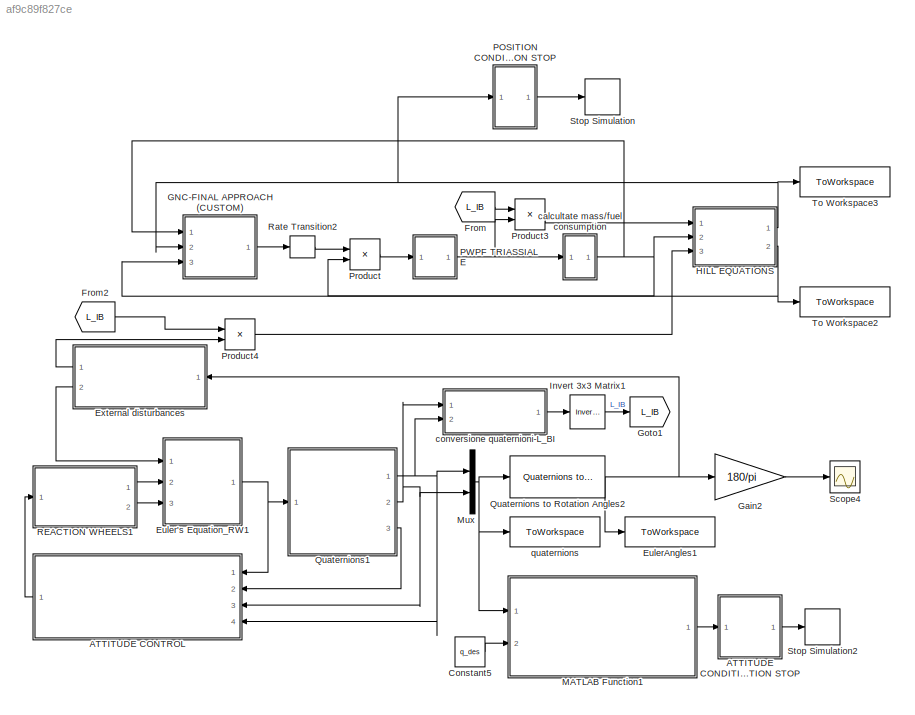
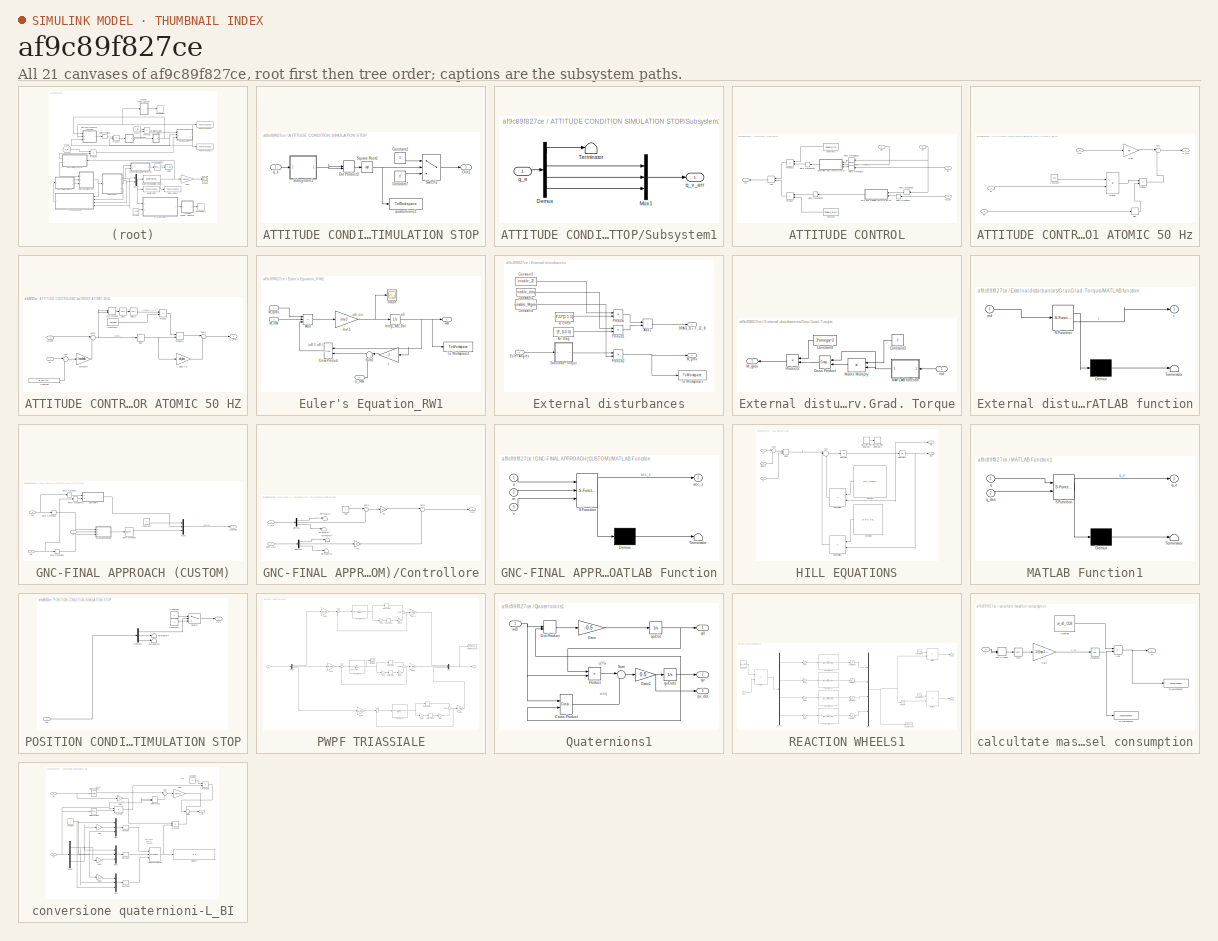
[diagram: thumbnail index - all 21 canvases of the model, root first then tree order]
MODEL slx_af9c89f827ce
KIND model
CONFIG AbsTol = auto
CONFIG EnableMultiTasking = off
CONFIG FixedStep = 0.01
CONFIG MaxStep = auto
CONFIG MinStep = auto
CONFIG RelTol = 1e-3
CONFIG SampleTimeConstraint = Unconstrained
CONFIG SolverName = ode5
CONFIG StartTime = 0.0
CONFIG StopTime = 10
BLOCK [SubSystem] ATTITUDE CONDITION SIMULATION STOP
  Ports = [1, 1]
  RequestExecContextInheritance = off
BLOCK [Constant] ATTITUDE CONDITION SIMULATION STOP/Constant2
BLOCK [Constant] ATTITUDE CONDITION SIMULATION STOP/Constant7
  Value = 0
BLOCK [DotProduct] ATTITUDE CONDITION SIMULATION STOP/Dot Product2
  OutDataTypeStr = Inherit: Inherit via internal rule
BLOCK [Outport] ATTITUDE CONDITION SIMULATION STOP/Out1
BLOCK [Sqrt] ATTITUDE CONDITION SIMULATION STOP/Square Root2
BLOCK [SubSystem] ATTITUDE CONDITION SIMULATION STOP/Subsystem1
  Ports = [1, 1]
  RequestExecContextInheritance = off
BLOCK [Demux] ATTITUDE CONDITION SIMULATION STOP/Subsystem1/Demux
  Ports = [1, 4]
BLOCK [Mux] ATTITUDE CONDITION SIMULATION STOP/Subsystem1/Mux1
  DisplayOption = bar
  Inputs = 3
  Ports = [3, 1]
BLOCK [Terminator] ATTITUDE CONDITION SIMULATION STOP/Subsystem1/Terminator
BLOCK [Inport] ATTITUDE CONDITION SIMULATION STOP/Subsystem1/q_e
BLOCK [Outport] ATTITUDE CONDITION SIMULATION STOP/Subsystem1/q_v_err
  VectorParamsAs1DForOutWhenUnconnected = off
BLOCK [Switch] ATTITUDE CONDITION SIMULATION STOP/Switch2
  Criteria = u2 > Threshold
  InputSameDT = off
  SaturateOnIntegerOverflow = off
  Threshold = e_ss
BLOCK [Inport] ATTITUDE CONDITION SIMULATION STOP/q_e
BLOCK [ToWorkspace] ATTITUDE CONDITION SIMULATION STOP/quaternions2
  FixptAsFi = on
  MaxDataPoints = inf
  Ports = [1]
  SampleTime = -1
  VariableName = normqerr
BLOCK [SubSystem] ATTITUDE CONTROL
  Ports = [4, 1]
  RequestExecContextInheritance = off
BLOCK [Sum] ATTITUDE CONTROL/Add
  IconShape = rectangular
  Ports = [2, 1]
BLOCK [Constant] ATTITUDE CONTROL/Constant
  Value = enable_SMC
BLOCK [Constant] ATTITUDE CONTROL/Constant1
  Value = enable_PD
BLOCK [SubSystem] ATTITUDE CONTROL/Controller PD1 ATOMIC 50 Hz
  Ports = [3, 1]
  RequestExecContextInheritance = off
  SystemSampleTime = 0.02
  TreatAsAtomicUnit = on
BLOCK [Constant] ATTITUDE CONTROL/Controller PD1 ATOMIC 50 Hz/Constant
  Value = kp1
BLOCK [Gain] ATTITUDE CONTROL/Controller PD1 ATOMIC 50 Hz/Gain
  Gain = kd
  Multiplication = Matrix(K*u) (u vector)
BLOCK [Product] ATTITUDE CONTROL/Controller PD1 ATOMIC 50 Hz/Multiply
  Multiplication = Matrix(*)
  Ports = [2, 1]
BLOCK [Product] ATTITUDE CONTROL/Controller PD1 ATOMIC 50 Hz/Multiply1
  Ports = [2, 1]
BLOCK [Signum] ATTITUDE CONTROL/Controller PD1 ATOMIC 50 Hz/Sign
BLOCK [Sum] ATTITUDE CONTROL/Controller PD1 ATOMIC 50 Hz/Sum
  Inputs = |--
  Ports = [2, 1]
BLOCK [Outport] ATTITUDE CONTROL/Controller PD1 ATOMIC 50 Hz/U_RW
  VectorParamsAs1DForOutWhenUnconnected = off
BLOCK [Inport] ATTITUDE CONTROL/Controller PD1 ATOMIC 50 Hz/q0
  Port = 3
BLOCK [Inport] ATTITUDE CONTROL/Controller PD1 ATOMIC 50 Hz/qv
BLOCK [Inport] ATTITUDE CONTROL/Controller PD1 ATOMIC 50 Hz/wb
  Port = 2
BLOCK [Outport] ATTITUDE CONTROL/Mc
BLOCK [Product] ATTITUDE CONTROL/Product
  Ports = [2, 1]
BLOCK [Product] ATTITUDE CONTROL/Product1
  Ports = [2, 1]
BLOCK [RateTransition] ATTITUDE CONTROL/Rate Transition10
  InitialCondition = wb_0
  OutPortSampleTime = Dt_con
BLOCK [RateTransition] ATTITUDE CONTROL/Rate Transition11
  InitialCondition = qv_0
  OutPortSampleTime = Dt_con
BLOCK [RateTransition] ATTITUDE CONTROL/Rate Transition12
  OutPortSampleTime = Dt
BLOCK [RateTransition] ATTITUDE CONTROL/Rate Transition13
  OutPortSampleTime = Dt
BLOCK [RateTransition] ATTITUDE CONTROL/Rate Transition7
  InitialCondition = qv_0
  OutPortSampleTime = Dt_con
BLOCK [RateTransition] ATTITUDE CONTROL/Rate Transition8
  InitialCondition = q0_0
  OutPortSampleTime = Dt_con
BLOCK [RateTransition] ATTITUDE CONTROL/Rate Transition9
  InitialCondition = q0_0
  OutPortSampleTime = Dt_con
BLOCK [SubSystem] ATTITUDE CONTROL/SMC 2nd ORDER ATOMIC 50 HZ
  Ports = [2, 1]
  RequestExecContextInheritance = off
  SystemSampleTime = 0.02
  TreatAsAtomicUnit = on
BLOCK [Constant] ATTITUDE CONTROL/SMC 2nd ORDER ATOMIC 50 HZ/Constant
  Value = [q_des(2);q_des(3);q_des(4)]
BLOCK [Constant] ATTITUDE CONTROL/SMC 2nd ORDER ATOMIC 50 HZ/Constant1
  Value = -lambda
BLOCK [DotProduct] ATTITUDE CONTROL/SMC 2nd ORDER ATOMIC 50 HZ/Dot Product
  OutDataTypeStr = Inherit: Inherit via internal rule
BLOCK [Product] ATTITUDE CONTROL/SMC 2nd ORDER ATOMIC 50 HZ/Product
  Ports = [2, 1]
BLOCK [Product] ATTITUDE CONTROL/SMC 2nd ORDER ATOMIC 50 HZ/Product1
  Ports = [2, 1]
BLOCK [Signum] ATTITUDE CONTROL/SMC 2nd ORDER ATOMIC 50 HZ/Sign
BLOCK [Sqrt] ATTITUDE CONTROL/SMC 2nd ORDER ATOMIC 50 HZ/Sqrt
BLOCK [Sqrt] ATTITUDE CONTROL/SMC 2nd ORDER ATOMIC 50 HZ/Sqrt1
BLOCK [Sum] ATTITUDE CONTROL/SMC 2nd ORDER ATOMIC 50 HZ/Sum
  Inputs = |+-
  Ports = [2, 1]
BLOCK [Sum] ATTITUDE CONTROL/SMC 2nd ORDER ATOMIC 50 HZ/Sum1
  Inputs = |++
  Ports = [2, 1]
BLOCK [Sum] ATTITUDE CONTROL/SMC 2nd ORDER ATOMIC 50 HZ/Sum2
  Inputs = |++
  Ports = [2, 1]
BLOCK [Outport] ATTITUDE CONTROL/SMC 2nd ORDER ATOMIC 50 HZ/U_RW
BLOCK [Gain] ATTITUDE CONTROL/SMC 2nd ORDER ATOMIC 50 HZ/alpha > 0
  Gain = -alpha
BLOCK [Gain] ATTITUDE CONTROL/SMC 2nd ORDER ATOMIC 50 HZ/lambda>0
  Gain = lambda
BLOCK [Inport] ATTITUDE CONTROL/SMC 2nd ORDER ATOMIC 50 HZ/qv
BLOCK [Inport] ATTITUDE CONTROL/SMC 2nd ORDER ATOMIC 50 HZ/qv_dot
  Port = 2
BLOCK [Inport] ATTITUDE CONTROL/q0
  Port = 4
BLOCK [Inport] ATTITUDE CONTROL/qv
  Port = 3
BLOCK [Inport] ATTITUDE CONTROL/qv_dot
  Port = 2
BLOCK [Inport] ATTITUDE CONTROL/wb
BLOCK [Constant] Constant5
  Value = q_des
BLOCK [SubSystem] Euler's Equation_RW1
  Ports = [3, 1]
  RequestExecContextInheritance = off
BLOCK [Sum] Euler's Equation_RW1/Add
  IconShape = rectangular
  Inputs = +--
  Ports = [3, 1]
BLOCK [Reference] Euler's Equation_RW1/Cross Product  REF=vrlib/Utilities/Cross Product
  Ports = [2, 1]
  SourceBlock = vrlib/Utilities/Cross Product
  SourceProductBaseCode = SL
  SourceType = Cross Product
BLOCK [Gain] Euler's Equation_RW1/I
  Gain = J
  Multiplication = Matrix(K*u)
BLOCK [Integrator] Euler's Equation_RW1/Integ_wB_Dot
  InitialCondition = wb_0
  Ports = [1, 1]
BLOCK [Gain] Euler's Equation_RW1/Inv^-1
  Gain = invJ
  Multiplication = Matrix(K*u)
BLOCK [Inport] Euler's Equation_RW1/M_RW
  Port = 2
BLOCK [Inport] Euler's Equation_RW1/M_grav
BLOCK [Scope] Euler's Equation_RW1/Scope
  Floating = off
  NumInputPorts = 1
  Ports = [1]
  ScopeSpecificationString = Simulink.scopes.TimeScopeBlockCfg('CurrentConfiguration', extmgr.ConfigurationSet(extmgr.Configuration('Core','General UI',true),extmgr.Configuration('Core','Source UI',true),extmgr.Configuration('Sources','WiredSimulink',true,'DataLoggingVariableName','ScopeData1'),extmgr.Configuration('Visuals','Time Domain',true,'SerializedDisplays',{struct('MinYLimReal','-0.0875','MaxYLimReal','0.0838','YLabel...<+1412ch>
BLOCK [Sum] Euler's Equation_RW1/Sum1
  Inputs = |++
  NameLocation = top
  Ports = [2, 1]
BLOCK [ToWorkspace] Euler's Equation_RW1/To Workspace3
  FixptAsFi = on
  MaxDataPoints = inf
  Ports = [1]
  SampleTime = -1
  VariableName = wb
BLOCK [Inport] Euler's Equation_RW1/h_RW
  Port = 3
BLOCK [Outport] Euler's Equation_RW1/wB
  VectorParamsAs1DForOutWhenUnconnected = off
BLOCK [ToWorkspace] EulerAngles1
  FixptAsFi = on
  MaxDataPoints = inf
  Ports = [1]
  SampleTime = -1
  VariableName = EulerAngles
BLOCK [SubSystem] External disturbances
  Ports = [1, 2]
  RequestExecContextInheritance = off
BLOCK [Sum] External disturbances/Add1
  IconShape = rectangular
  Ports = [2, 1]
BLOCK [Constant] External disturbances/Air Drag
  Value = [F_D 0 0]
BLOCK [Constant] External disturbances/Constant1
  Value = enable_drag
BLOCK [Constant] External disturbances/Constant3
  Value = enable_J2
BLOCK [Constant] External disturbances/Constant4
  Value = enable_Mgrav
BLOCK [Outport] External disturbances/DRAG_B + F_J2_B
BLOCK [Inport] External disturbances/Euler Angles
BLOCK [SubSystem] External disturbances/Grav.Grad. Torque
  Ports = [1, 1]
  RequestExecContextInheritance = off
BLOCK [Constant] External disturbances/Grav.Grad. Torque/Constant3
  Value = J
BLOCK [Constant] External disturbances/Grav.Grad. Torque/Constant4
  Value = 3*omega^2
BLOCK [Reference] External disturbances/Grav.Grad. Torque/Cross Product  REF=vrlib/Utilities/Cross Product
  Ports = [2, 1]
  SourceBlock = vrlib/Utilities/Cross Product
  SourceProductBaseCode = SL
  SourceType = Cross Product
BLOCK [SubSystem] External disturbances/Grav.Grad. Torque/MATLAB function
  ErrorFcn = Stateflow.Translate.translate
  PermitHierarchicalResolution = ExplicitOnly
  Ports = [1, 1]
  RequestExecContextInheritance = off
  SFBlockType = MATLAB Function
  TreatAsAtomicUnit = on
BLOCK [Demux] External disturbances/Grav.Grad. Torque/MATLAB function/ Demux 
  Outputs = 1
  Ports = [1, 1]
BLOCK [S-Function] External disturbances/Grav.Grad. Torque/MATLAB function/ SFunction 
  EnableBusSupport = on
  FunctionName = sf_sfun
  PortCounts = [1 2]
  Ports = [1, 2]
  SFcnIsStateOwnerBlock = off
  SFunctionDeploymentMode = off
  Tag = Stateflow S-Function 4
BLOCK [Terminator] External disturbances/Grav.Grad. Torque/MATLAB function/ Terminator 
BLOCK [Inport] External disturbances/Grav.Grad. Torque/MATLAB function/eul
BLOCK [Outport] External disturbances/Grav.Grad. Torque/MATLAB function/r
BLOCK [Outport] External disturbances/Grav.Grad. Torque/M_grav
BLOCK [Product] External disturbances/Grav.Grad. Torque/Matrix Multiply
  Multiplication = Matrix(*)
  Ports = [2, 1]
BLOCK [Product] External disturbances/Grav.Grad. Torque/Product2
  Ports = [2, 1]
BLOCK [Inport] External disturbances/Grav.Grad. Torque/eul
BLOCK [Constant] External disturbances/J2 Effect
  Value = FJ2*[1 1 1]
BLOCK [Outport] External disturbances/M_grav
  Port = 2
BLOCK [Product] External disturbances/Product
  Ports = [2, 1]
BLOCK [Product] External disturbances/Product1
  Ports = [2, 1]
BLOCK [Product] External disturbances/Product2
  Ports = [2, 1]
BLOCK [ToWorkspace] External disturbances/To Workspace5
  FixptAsFi = on
  MaxDataPoints = inf
  Ports = [1]
  SampleTime = -1
  VariableName = M_grav
BLOCK [From] From
  GotoTag = L_IB
BLOCK [From] From2
  GotoTag = L_IB
BLOCK [SubSystem] GNC-FINAL APPROACH (CUSTOM)
  Ports = [3, 1]
  RequestExecContextInheritance = off
BLOCK [Constant] GNC-FINAL APPROACH (CUSTOM)/Constant
  Value = 0
BLOCK [SubSystem] GNC-FINAL APPROACH (CUSTOM)/Controllore
  Ports = [2, 1]
  RequestExecContextInheritance = off
BLOCK [Demux] GNC-FINAL APPROACH (CUSTOM)/Controllore/Demux1
  Outputs = 3
  Ports = [1, 3]
BLOCK [Demux] GNC-FINAL APPROACH (CUSTOM)/Controllore/Demux4
  Outputs = 3
  Ports = [1, 3]
BLOCK [Gain] GNC-FINAL APPROACH (CUSTOM)/Controllore/Kd
  Gain = Kd
BLOCK [Gain] GNC-FINAL APPROACH (CUSTOM)/Controllore/Kp
  Gain = Kp
BLOCK [Outport] GNC-FINAL APPROACH (CUSTOM)/Controllore/Out1
BLOCK [Sum] GNC-FINAL APPROACH (CUSTOM)/Controllore/Sum1
  Inputs = |+-
  Ports = [2, 1]
BLOCK [Sum] GNC-FINAL APPROACH (CUSTOM)/Controllore/Sum2
  Inputs = |+-
  Ports = [2, 1]
BLOCK [Terminator] GNC-FINAL APPROACH (CUSTOM)/Controllore/Terminator1
BLOCK [Terminator] GNC-FINAL APPROACH (CUSTOM)/Controllore/Terminator2
BLOCK [Terminator] GNC-FINAL APPROACH (CUSTOM)/Controllore/Terminator4
BLOCK [Terminator] GNC-FINAL APPROACH (CUSTOM)/Controllore/Terminator5
BLOCK [Inport] GNC-FINAL APPROACH (CUSTOM)/Controllore/x LVLH
BLOCK [Inport] GNC-FINAL APPROACH (CUSTOM)/Controllore/xdot LVLH
  Port = 2
BLOCK [Constant] GNC-FINAL APPROACH (CUSTOM)/Controllore/ydes
  Value = 0
BLOCK [SubSystem] GNC-FINAL APPROACH (CUSTOM)/MATLAB Function
  ErrorFcn = Stateflow.Translate.translate
  PermitHierarchicalResolution = ExplicitOnly
  Ports = [3, 1]
  RequestExecContextInheritance = off
  SFBlockType = MATLAB Function
  TreatAsAtomicUnit = on
BLOCK [Demux] GNC-FINAL APPROACH (CUSTOM)/MATLAB Function/ Demux 
  Outputs = 1
  Ports = [1, 1]
BLOCK [S-Function] GNC-FINAL APPROACH (CUSTOM)/MATLAB Function/ SFunction 
  EnableBusSupport = on
  FunctionName = sf_sfun
  PortCounts = [3 2]
  Ports = [3, 2]
  SFcnIsStateOwnerBlock = off
  SFunctionDeploymentMode = off
  Tag = Stateflow S-Function 1
BLOCK [Terminator] GNC-FINAL APPROACH (CUSTOM)/MATLAB Function/ Terminator 
BLOCK [Outport] GNC-FINAL APPROACH (CUSTOM)/MATLAB Function/acc_z
BLOCK [Inport] GNC-FINAL APPROACH (CUSTOM)/MATLAB Function/m
  Port = 2
BLOCK [Inport] GNC-FINAL APPROACH (CUSTOM)/MATLAB Function/u
BLOCK [Inport] GNC-FINAL APPROACH (CUSTOM)/MATLAB Function/v
  Port = 3
BLOCK [Mux] GNC-FINAL APPROACH (CUSTOM)/Mux3
  DisplayOption = bar
  Inputs = 3
  Ports = [3, 1]
BLOCK [Inport] GNC-FINAL APPROACH (CUSTOM)/Pos
  Port = 2
BLOCK [RateTransition] GNC-FINAL APPROACH (CUSTOM)/Rate Transition
  OutPortSampleTime = Dt_con
BLOCK [RateTransition] GNC-FINAL APPROACH (CUSTOM)/Rate Transition1
  InitialCondition = Pos0
  OutPortSampleTime = Dt_con
BLOCK [RateTransition] GNC-FINAL APPROACH (CUSTOM)/Rate Transition12
  InitialCondition = Vel0
  OutPortSampleTime = Dt_con
BLOCK [RateTransition] GNC-FINAL APPROACH (CUSTOM)/Rate Transition4
  InitialCondition = Vel0
  OutPortSampleTime = Dt_guid
BLOCK [RateTransition] GNC-FINAL APPROACH (CUSTOM)/Rate Transition5
  InitialCondition = Pos0
  OutPortSampleTime = Dt_guid
BLOCK [Inport] GNC-FINAL APPROACH (CUSTOM)/Vel
  Port = 3
BLOCK [Outport] GNC-FINAL APPROACH (CUSTOM)/aCUSTOM
BLOCK [Inport] GNC-FINAL APPROACH (CUSTOM)/m
BLOCK [Gain] Gain2
  Gain = 180/pi
BLOCK [Goto] Goto1
  GotoTag = L_IB
BLOCK [SubSystem] HILL EQUATIONS
  Ports = [3, 2]
  RequestExecContextInheritance = off
BLOCK [Constant] HILL EQUATIONS/Constant
  Value = [0 0 -2*omega; 0 0 0; 2*omega 0 0]
BLOCK [Constant] HILL EQUATIONS/Constant1
  Value = [0 0 0; 0 omega^2 0; 0 0 -3*omega^2]
BLOCK [DiscreteIntegrator] HILL EQUATIONS/Discrete-Time Integrator
  Commented = on
  ICPrevOutput = DiscIntNeverNeededParam
  ICPrevScaledInput = DiscIntNeverNeededParam
  InitialCondition = Vel0
  InitialConditionSetting = Auto
  Ports = [1, 1]
  SampleTime = -1
BLOCK [DiscreteIntegrator] HILL EQUATIONS/Discrete-Time Integrator1
  Commented = on
  ICPrevOutput = DiscIntNeverNeededParam
  ICPrevScaledInput = DiscIntNeverNeededParam
  InitialCondition = Pos0
  InitialConditionSetting = Auto
  Ports = [1, 1]
  SampleTime = -1
BLOCK [Inport] HILL EQUATIONS/Disturbi
  Port = 3
BLOCK [Product] HILL EQUATIONS/Divide
  Inputs = */
  Ports = [2, 1]
BLOCK [Inport] HILL EQUATIONS/Fc
BLOCK [Integrator] HILL EQUATIONS/Integrator
  InitialCondition = Vel0
  Ports = [1, 1]
BLOCK [Integrator] HILL EQUATIONS/Integrator1
  InitialCondition = Pos0
  Ports = [1, 1]
BLOCK [Product] HILL EQUATIONS/Matrix Multiply
  Multiplication = Matrix(*)
  Ports = [2, 1]
BLOCK [Product] HILL EQUATIONS/Matrix Multiply1
  Multiplication = Matrix(*)
  Ports = [2, 1]
BLOCK [Outport] HILL EQUATIONS/Pos
BLOCK [Sum] HILL EQUATIONS/Sum
  Inputs = |+--
  Ports = [3, 1]
BLOCK [Sum] HILL EQUATIONS/Sum1
  Inputs = |++
  Ports = [2, 1]
BLOCK [Outport] HILL EQUATIONS/Vel
  Port = 2
BLOCK [Inport] HILL EQUATIONS/m
  Port = 2
BLOCK [Reference] Invert 3x3 Matrix1  REF=aerolibutil/Invert 
3x3 Matrix
  Ports = [1, 1]
  SourceBlock = aerolibutil/Invert \n3x3 Matrix
  SourceProductBaseCode = AE
  SourceType = Invert 3x3 Matrix
BLOCK [SubSystem] MATLAB Function1
  ErrorFcn = Stateflow.Translate.translate
  PermitHierarchicalResolution = ExplicitOnly
  Ports = [2, 1]
  RequestExecContextInheritance = off
  SFBlockType = MATLAB Function
  TreatAsAtomicUnit = on
BLOCK [Demux] MATLAB Function1/ Demux 
  Outputs = 1
  Ports = [1, 1]
BLOCK [S-Function] MATLAB Function1/ SFunction 
  EnableBusSupport = on
  FunctionName = sf_sfun
  PortCounts = [2 2]
  Ports = [2, 2]
  SFcnIsStateOwnerBlock = off
  SFunctionDeploymentMode = off
  Tag = Stateflow S-Function 11
BLOCK [Terminator] MATLAB Function1/ Terminator 
BLOCK [Inport] MATLAB Function1/q
BLOCK [Inport] MATLAB Function1/q_des
  Port = 2
BLOCK [Outport] MATLAB Function1/q_e
  VectorParamsAs1DForOutWhenUnconnected = off
BLOCK [Mux] Mux
  DisplayOption = bar
  Inputs = 2
  Ports = [2, 1]
BLOCK [SubSystem] POSITION CONDITION SIMULATION STOP
  Ports = [1, 1]
  RequestExecContextInheritance = off
BLOCK [Constant] POSITION CONDITION SIMULATION STOP/Constant
BLOCK [Constant] POSITION CONDITION SIMULATION STOP/Constant1
  Value = 0
BLOCK [Demux] POSITION CONDITION SIMULATION STOP/Demux2
  Outputs = 3
  Ports = [1, 3]
BLOCK [Outport] POSITION CONDITION SIMULATION STOP/Out1
BLOCK [Inport] POSITION CONDITION SIMULATION STOP/Pos
BLOCK [Switch] POSITION CONDITION SIMULATION STOP/Switch
  Criteria = u2 > Threshold
  InputSameDT = off
  SaturateOnIntegerOverflow = off
  Threshold = -2
BLOCK [Terminator] POSITION CONDITION SIMULATION STOP/Terminator3
BLOCK [Terminator] POSITION CONDITION SIMULATION STOP/Terminator4
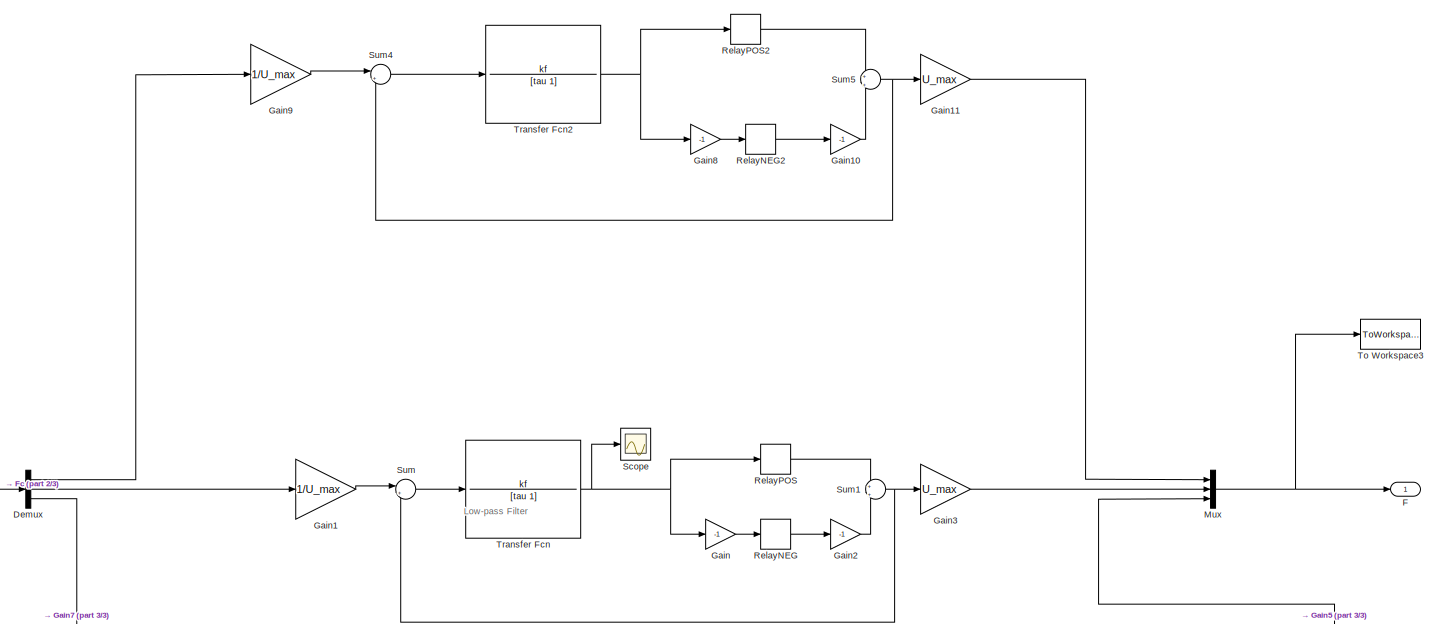
[diagram: PWPF TRIASSIALE - part 1/3, full width, middle band]
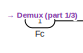
[diagram: PWPF TRIASSIALE - part 2/3, middle left region]
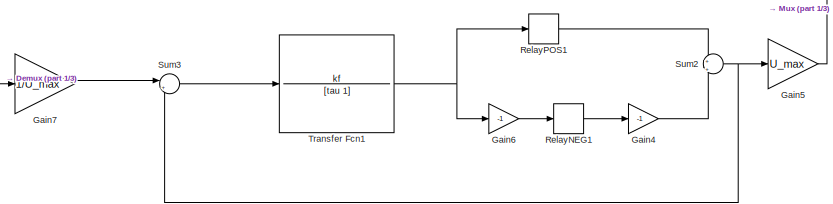
[diagram: PWPF TRIASSIALE - part 3/3, bottom right region]
BLOCK [SubSystem] PWPF TRIASSIALE
  Ports = [1, 1]
  RequestExecContextInheritance = off
BLOCK [Demux] PWPF TRIASSIALE/Demux
  Outputs = 3
  Ports = [1, 3]
BLOCK [Outport] PWPF TRIASSIALE/F
  VectorParamsAs1DForOutWhenUnconnected = off
BLOCK [Inport] PWPF TRIASSIALE/Fc
BLOCK [Gain] PWPF TRIASSIALE/Gain
  Gain = -1
BLOCK [Gain] PWPF TRIASSIALE/Gain1
  Gain = 1/U_max
BLOCK [Gain] PWPF TRIASSIALE/Gain10
  Gain = -1
BLOCK [Gain] PWPF TRIASSIALE/Gain11
  Gain = U_max
BLOCK [Gain] PWPF TRIASSIALE/Gain2
  Gain = -1
BLOCK [Gain] PWPF TRIASSIALE/Gain3
  Gain = U_max
BLOCK [Gain] PWPF TRIASSIALE/Gain4
  Gain = -1
BLOCK [Gain] PWPF TRIASSIALE/Gain5
  Gain = U_max
BLOCK [Gain] PWPF TRIASSIALE/Gain6
  Gain = -1
BLOCK [Gain] PWPF TRIASSIALE/Gain7
  Gain = 1/U_max
BLOCK [Gain] PWPF TRIASSIALE/Gain8
  Gain = -1
BLOCK [Gain] PWPF TRIASSIALE/Gain9
  Gain = 1/U_max
BLOCK [Mux] PWPF TRIASSIALE/Mux
  DisplayOption = bar
  Inputs = 3
  Ports = [3, 1]
BLOCK [Relay] PWPF TRIASSIALE/RelayNEG
  OffSwitchValue = U_off
  OnSwitchValue = U_on
BLOCK [Relay] PWPF TRIASSIALE/RelayNEG1
  OffSwitchValue = U_off
  OnSwitchValue = U_on
BLOCK [Relay] PWPF TRIASSIALE/RelayNEG2
  OffSwitchValue = U_off
  OnSwitchValue = U_on
BLOCK [Relay] PWPF TRIASSIALE/RelayPOS
  OffSwitchValue = U_off
  OnSwitchValue = U_on
BLOCK [Relay] PWPF TRIASSIALE/RelayPOS1
  OffSwitchValue = U_off
  OnSwitchValue = U_on
BLOCK [Relay] PWPF TRIASSIALE/RelayPOS2
  OffSwitchValue = U_off
  OnSwitchValue = U_on
BLOCK [Scope] PWPF TRIASSIALE/Scope
  Floating = off
  NumInputPorts = 1
  Ports = [1]
  ScopeSpecificationString = Simulink.scopes.TimeScopeBlockCfg('CurrentConfiguration', extmgr.ConfigurationSet(extmgr.Configuration('Core','General UI',true),extmgr.Configuration('Core','Source UI',true),extmgr.Configuration('Sources','WiredSimulink',true),extmgr.Configuration('Visuals','Time Domain',true,'SerializedDisplays',{struct('MinYLimReal','-8.82672','MaxYLimReal','2.10991','YLabelReal','','MinYLimMag','0.00000','MaxY...<+1421ch>
BLOCK [Sum] PWPF TRIASSIALE/Sum
  Inputs = |+-
  Ports = [2, 1]
BLOCK [Sum] PWPF TRIASSIALE/Sum1
  Inputs = +|+
  Ports = [2, 1]
BLOCK [Sum] PWPF TRIASSIALE/Sum2
  Inputs = +|+
  Ports = [2, 1]
BLOCK [Sum] PWPF TRIASSIALE/Sum3
  Inputs = |+-
  Ports = [2, 1]
BLOCK [Sum] PWPF TRIASSIALE/Sum4
  Inputs = |+-
  Ports = [2, 1]
BLOCK [Sum] PWPF TRIASSIALE/Sum5
  Inputs = +|+
  Ports = [2, 1]
BLOCK [ToWorkspace] PWPF TRIASSIALE/To Workspace3
  FixptAsFi = on
  MaxDataPoints = inf
  Ports = [1]
  SampleTime = -1
  VariableName = Fb
BLOCK [TransferFcn] PWPF TRIASSIALE/Transfer Fcn
  Denominator = [tau 1]
  Numerator = kf
BLOCK [TransferFcn] PWPF TRIASSIALE/Transfer Fcn1
  Denominator = [tau 1]
  Numerator = kf
BLOCK [TransferFcn] PWPF TRIASSIALE/Transfer Fcn2
  Denominator = [tau 1]
  Numerator = kf
BLOCK [Product] Product
  Ports = [2, 1]
BLOCK [Product] Product3
  Multiplication = Matrix(*)
  Ports = [2, 1]
BLOCK [Product] Product4
  Multiplication = Matrix(*)
  Ports = [2, 1]
BLOCK [Reference] Quaternions to Rotation Angles2  REF=sharedtransform/Quaternions to Rotation Angles
  AttributesFormatString = Rotation Order: %<rotationOrder>
  Ports = [1, 1]
  SourceBlock = sharedtransform/Quaternions to Rotation Angles
  SourceProductBaseCode = AE,PW,MT,UV,VE,VP
  SourceType = Quat2Ang
BLOCK [SubSystem] Quaternions1
  Ports = [1, 3]
  RequestExecContextInheritance = off
BLOCK [Reference] Quaternions1/Cross Product  REF=vrlib/Utilities/Cross Product
  Ports = [2, 1]
  SourceBlock = vrlib/Utilities/Cross Product
  SourceProductBaseCode = SL
  SourceType = Cross Product
BLOCK [DotProduct] Quaternions1/Dot Product
  OutDataTypeStr = Inherit: Inherit via internal rule
BLOCK [Gain] Quaternions1/Gain
  Gain = -0.5
  Multiplication = Matrix(K*u)
BLOCK [Gain] Quaternions1/Gain1
  Gain = 0.5
  Multiplication = Matrix(K*u)
BLOCK [Product] Quaternions1/Product
  Ports = [2, 1]
  RndMeth = Zero
BLOCK [Sum] Quaternions1/Sum
  Inputs = |+-
  Ports = [2, 1]
BLOCK [Outport] Quaternions1/q0
  VectorParamsAs1DForOutWhenUnconnected = off
BLOCK [Integrator] Quaternions1/qoDot
  InitialCondition = q0_0
  Ports = [1, 1]
BLOCK [Outport] Quaternions1/qv
  Port = 2
  VectorParamsAs1DForOutWhenUnconnected = off
BLOCK [Integrator] Quaternions1/qvDot1
  InitialCondition = qv_0
  Ports = [1, 1]
BLOCK [Outport] Quaternions1/qv_dot
  Port = 3
  VectorParamsAs1DForOutWhenUnconnected = off
BLOCK [Inport] Quaternions1/wB
BLOCK [SubSystem] REACTION WHEELS1
  Ports = [1, 2]
  RequestExecContextInheritance = off
BLOCK [Constant] REACTION WHEELS1/Constant
  Value = INV_ZZZ
BLOCK [Demux] REACTION WHEELS1/Demux
  Ports = [1, 4]
BLOCK [Gain] REACTION WHEELS1/Gain
  Gain = -1
BLOCK [Gain] REACTION WHEELS1/Gain1
  Gain = -1
BLOCK [Gain] REACTION WHEELS1/Gain2
  Gain = -1
BLOCK [Gain] REACTION WHEELS1/Gain3
  Gain = -1
BLOCK [Integrator] REACTION WHEELS1/Integrator
  Ports = [1, 1]
BLOCK [Outport] REACTION WHEELS1/M_RW
  VectorParamsAs1DForOutWhenUnconnected = off
BLOCK [Inport] REACTION WHEELS1/Mc
BLOCK [Product] REACTION WHEELS1/Multiply
  Multiplication = Matrix(*)
  Ports = [2, 1]
BLOCK [Product] REACTION WHEELS1/Multiply1
  Multiplication = Matrix(*)
  Ports = [2, 1]
BLOCK [Product] REACTION WHEELS1/Multiply2
  Multiplication = Matrix(*)
  Ports = [2, 1]
BLOCK [Mux] REACTION WHEELS1/Mux2
  DisplayOption = bar
  Ports = [4, 1]
BLOCK [Constant] REACTION WHEELS1/RW TO BODY
  Value = ZZZ
BLOCK [Constant] REACTION WHEELS1/RW TO BODY1
  Value = ZZZ
BLOCK [Saturate] REACTION WHEELS1/Saturation1
  LowerLimit = -gmax
  UpperLimit = gmax
BLOCK [Saturate] REACTION WHEELS1/Saturation2
  LowerLimit = -gmax
  UpperLimit = gmax
BLOCK [Saturate] REACTION WHEELS1/Saturation3
  LowerLimit = -gmax
  UpperLimit = gmax
BLOCK [Saturate] REACTION WHEELS1/Saturation7
  LowerLimit = -gmax
  UpperLimit = gmax
BLOCK [ToWorkspace] REACTION WHEELS1/To Workspace
  FixptAsFi = on
  MaxDataPoints = inf
  Ports = [1]
  SampleTime = -1
  VariableName = M_RWRW
BLOCK [TransferFcn] REACTION WHEELS1/Transfer Fcn1
  Denominator = [tau_RW p_RW]
  Numerator = Kr
BLOCK [TransferFcn] REACTION WHEELS1/Transfer Fcn2
  Denominator = [tau_RW p_RW]
  Numerator = Kr
BLOCK [TransferFcn] REACTION WHEELS1/Transfer Fcn3
  Denominator = [tau_RW p_RW]
  Numerator = Kr
BLOCK [TransferFcn] REACTION WHEELS1/Transfer Fcn4
  Denominator = [tau_RW p_RW]
  Numerator = Kr
BLOCK [Outport] REACTION WHEELS1/h_RW 
  Port = 2
  VectorParamsAs1DForOutWhenUnconnected = off
BLOCK [RateTransition] Rate Transition2
  OutPortSampleTime = Dt
BLOCK [Scope] Scope4
  Floating = off
  NumInputPorts = 1
  Ports = [1]
  ScopeSpecificationString = Simulink.scopes.TimeScopeBlockCfg('CurrentConfiguration', extmgr.ConfigurationSet(extmgr.Configuration('Core','General UI',true),extmgr.Configuration('Core','Source UI',true),extmgr.Configuration('Sources','WiredSimulink',true,'DataLoggingVariableName','ScopeData1'),extmgr.Configuration('Visuals','Time Domain',true,'SerializedDisplays',{struct('MinYLimReal','-11.25','MaxYLimReal','101.25','YLabelR...<+1375ch>
BLOCK [Stop] Stop Simulation
BLOCK [Stop] Stop Simulation2
BLOCK [ToWorkspace] To Workspace2
  FixptAsFi = on
  MaxDataPoints = inf
  Ports = [1]
  SampleTime = -1
  VariableName = Vel
BLOCK [ToWorkspace] To Workspace3
  FixptAsFi = on
  MaxDataPoints = inf
  Ports = [1]
  SampleTime = -1
  VariableName = Pos
BLOCK [SubSystem] calcultate mass//fuel consumption
  Ports = [1, 1]
  RequestExecContextInheritance = off
BLOCK [Sum] calcultate mass//fuel consumption/Add
  IconShape = rectangular
  Inputs = +-
  Ports = [2, 1]
BLOCK [Constant] calcultate mass//fuel consumption/Constant
  Value = m_c0_CUS
BLOCK [DotProduct] calcultate mass//fuel consumption/Dot Product
  OutDataTypeStr = Inherit: Inherit via internal rule
BLOCK [Inport] calcultate mass//fuel consumption/F
BLOCK [Gain] calcultate mass//fuel consumption/Gain
  Gain = 1/(Isp1*9.81)
BLOCK [Integrator] calcultate mass//fuel consumption/Integrator
  NameLocation = top
  Ports = [1, 1]
BLOCK [Sqrt] calcultate mass//fuel consumption/Sqrt
BLOCK [ToWorkspace] calcultate mass//fuel consumption/To Workspace1
  FixptAsFi = on
  MaxDataPoints = inf
  Ports = [1]
  SampleTime = -1
  VariableName = m
BLOCK [ToWorkspace] calcultate mass//fuel consumption/To Workspace4
  FixptAsFi = on
  MaxDataPoints = inf
  Ports = [1]
  SampleTime = -1
  VariableName = mf
BLOCK [Outport] calcultate mass//fuel consumption/m
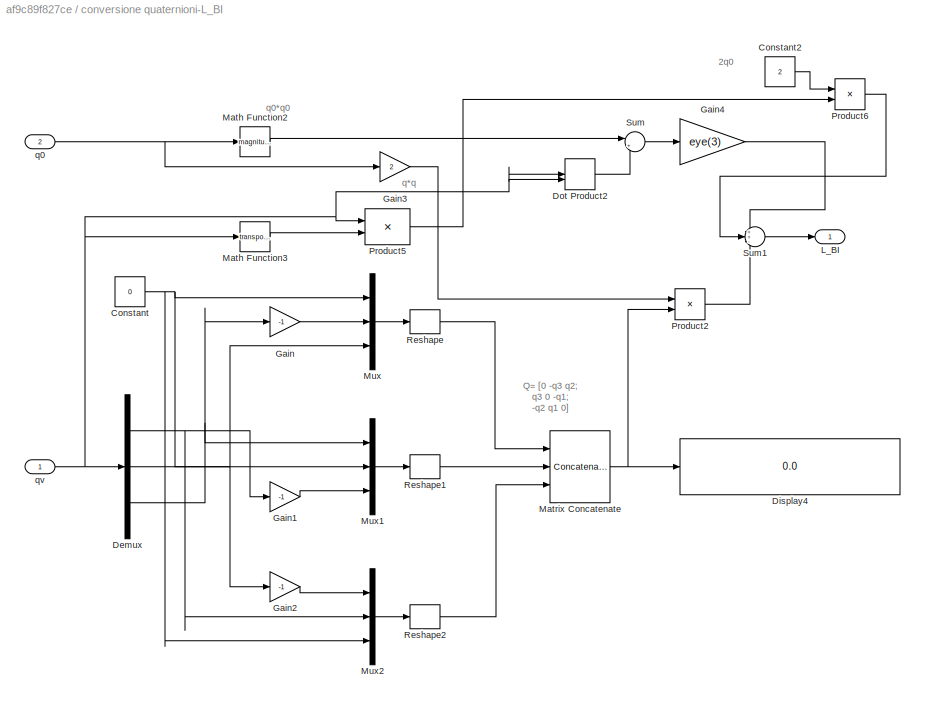
BLOCK [SubSystem] conversione quaternioni-L_BI
  Ports = [2, 1]
  RequestExecContextInheritance = off
BLOCK [Constant] conversione quaternioni-L_BI/Constant
  Value = 0
BLOCK [Constant] conversione quaternioni-L_BI/Constant2
  Value = 2
BLOCK [Demux] conversione quaternioni-L_BI/Demux
  Outputs = 3
  Ports = [1, 3]
BLOCK [Display] conversione quaternioni-L_BI/Display4
  Decimation = 1
  Ports = [1]
BLOCK [DotProduct] conversione quaternioni-L_BI/Dot Product2
  OutDataTypeStr = Inherit: Inherit via internal rule
BLOCK [Gain] conversione quaternioni-L_BI/Gain
  Gain = -1
BLOCK [Gain] conversione quaternioni-L_BI/Gain1
  Gain = -1
BLOCK [Gain] conversione quaternioni-L_BI/Gain2
  Gain = -1
BLOCK [Gain] conversione quaternioni-L_BI/Gain3
  Gain = 2
BLOCK [Gain] conversione quaternioni-L_BI/Gain4
  Gain = eye(3)
BLOCK [Outport] conversione quaternioni-L_BI/L_BI
  VectorParamsAs1DForOutWhenUnconnected = off
BLOCK [Math] conversione quaternioni-L_BI/Math Function2
  Operator = magnitude^2
  Ports = [1, 1]
  SignedPower = on
BLOCK [Math] conversione quaternioni-L_BI/Math Function3
  Operator = transpose
  Ports = [1, 1]
  SignedPower = on
BLOCK [Concatenate] conversione quaternioni-L_BI/Matrix Concatenate
  Mode = Multidimensional array
  NumInputs = 3
  Ports = [3, 1]
BLOCK [Mux] conversione quaternioni-L_BI/Mux
  DisplayOption = bar
  Inputs = 3
  Ports = [3, 1]
BLOCK [Mux] conversione quaternioni-L_BI/Mux1
  DisplayOption = bar
  Inputs = 3
  Ports = [3, 1]
BLOCK [Mux] conversione quaternioni-L_BI/Mux2
  DisplayOption = bar
  Inputs = 3
  Ports = [3, 1]
BLOCK [Product] conversione quaternioni-L_BI/Product2
  Ports = [2, 1]
  RndMeth = Zero
BLOCK [Product] conversione quaternioni-L_BI/Product5
  Multiplication = Matrix(*)
  Ports = [2, 1]
BLOCK [Product] conversione quaternioni-L_BI/Product6
  Ports = [2, 1]
BLOCK [Reshape] conversione quaternioni-L_BI/Reshape
  OutputDimensionality = Row vector (2-D)
  Ports = [1, 1]
BLOCK [Reshape] conversione quaternioni-L_BI/Reshape1
  OutputDimensionality = Row vector (2-D)
  Ports = [1, 1]
BLOCK [Reshape] conversione quaternioni-L_BI/Reshape2
  OutputDimensionality = Row vector (2-D)
  Ports = [1, 1]
BLOCK [Sum] conversione quaternioni-L_BI/Sum
  Inputs = |+-
  Ports = [2, 1]
BLOCK [Sum] conversione quaternioni-L_BI/Sum1
  Inputs = ++-
  Ports = [3, 1]
BLOCK [Inport] conversione quaternioni-L_BI/q0
  Port = 2
BLOCK [Inport] conversione quaternioni-L_BI/qv
BLOCK [ToWorkspace] quaternions
  FixptAsFi = on
  MaxDataPoints = inf
  Ports = [1]
  SampleTime = -1
  VariableName = quaternions
ANNOTATION Euler's Equation_RW1: (wB X wB I)
ANNOTATION Euler's Equation_RW1: wB_dot
ANNOTATION Euler's Equation_RW1: wB
ANNOTATION PWPF TRIASSIALE: Low-pass Filter
ANNOTATION Quaternions1: q0*w
ANNOTATION Quaternions1: wxq
ANNOTATION conversione quaternioni-L_BI: 2q0
ANNOTATION conversione quaternioni-L_BI: Q= [0 -q3 q2; q3 0 -q1; -q2 q1 0]
ANNOTATION conversione quaternioni-L_BI: q*q
ANNOTATION conversione quaternioni-L_BI: q0*q0
LINE ATTITUDE CONDITION SIMULATION STOP/Constant2:1 -> ATTITUDE CONDITION SIMULATION STOP/Switch2:1
LINE ATTITUDE CONDITION SIMULATION STOP/Constant7:1 -> ATTITUDE CONDITION SIMULATION STOP/Switch2:3
LINE ATTITUDE CONDITION SIMULATION STOP/Dot Product2:1 -> ATTITUDE CONDITION SIMULATION STOP/Square Root2:1
NET ATTITUDE CONDITION SIMULATION STOP/Square Root2:1 -> ATTITUDE CONDITION SIMULATION STOP/Switch2:2, ATTITUDE CONDITION SIMULATION STOP/quaternions2:1
LINE ATTITUDE CONDITION SIMULATION STOP/Subsystem1/Demux:1 -> ATTITUDE CONDITION SIMULATION STOP/Subsystem1/Terminator:1
LINE ATTITUDE CONDITION SIMULATION STOP/Subsystem1/Demux:2 -> ATTITUDE CONDITION SIMULATION STOP/Subsystem1/Mux1:1
LINE ATTITUDE CONDITION SIMULATION STOP/Subsystem1/Demux:3 -> ATTITUDE CONDITION SIMULATION STOP/Subsystem1/Mux1:2
LINE ATTITUDE CONDITION SIMULATION STOP/Subsystem1/Demux:4 -> ATTITUDE CONDITION SIMULATION STOP/Subsystem1/Mux1:3
LINE ATTITUDE CONDITION SIMULATION STOP/Subsystem1/Mux1:1 -> ATTITUDE CONDITION SIMULATION STOP/Subsystem1/q_v_err:1
LINE ATTITUDE CONDITION SIMULATION STOP/Subsystem1/q_e:1 -> ATTITUDE CONDITION SIMULATION STOP/Subsystem1/Demux:1
NET ATTITUDE CONDITION SIMULATION STOP/Subsystem1:1 -> ATTITUDE CONDITION SIMULATION STOP/Dot Product2:1, ATTITUDE CONDITION SIMULATION STOP/Dot Product2:2
LINE ATTITUDE CONDITION SIMULATION STOP/Switch2:1 -> ATTITUDE CONDITION SIMULATION STOP/Out1:1
LINE ATTITUDE CONDITION SIMULATION STOP/q_e:1 -> ATTITUDE CONDITION SIMULATION STOP/Subsystem1:1
LINE ATTITUDE CONDITION SIMULATION STOP:1 -> Stop Simulation2:1
LINE ATTITUDE CONTROL/Add:1 -> ATTITUDE CONTROL/Mc:1
LINE ATTITUDE CONTROL/Constant1:1 -> ATTITUDE CONTROL/Product1:1
LINE ATTITUDE CONTROL/Constant:1 -> ATTITUDE CONTROL/Product:2
LINE ATTITUDE CONTROL/Controller PD1 ATOMIC 50 Hz/Constant:1 -> ATTITUDE CONTROL/Controller PD1 ATOMIC 50 Hz/Multiply:1
LINE ATTITUDE CONTROL/Controller PD1 ATOMIC 50 Hz/Gain:1 -> ATTITUDE CONTROL/Controller PD1 ATOMIC 50 Hz/Sum:1
LINE ATTITUDE CONTROL/Controller PD1 ATOMIC 50 Hz/Multiply1:1 -> ATTITUDE CONTROL/Controller PD1 ATOMIC 50 Hz/Sum:2
LINE ATTITUDE CONTROL/Controller PD1 ATOMIC 50 Hz/Multiply:1 -> ATTITUDE CONTROL/Controller PD1 ATOMIC 50 Hz/Multiply1:1
LINE ATTITUDE CONTROL/Controller PD1 ATOMIC 50 Hz/Sign:1 -> ATTITUDE CONTROL/Controller PD1 ATOMIC 50 Hz/Multiply1:2
LINE ATTITUDE CONTROL/Controller PD1 ATOMIC 50 Hz/Sum:1 -> ATTITUDE CONTROL/Controller PD1 ATOMIC 50 Hz/U_RW:1
LINE ATTITUDE CONTROL/Controller PD1 ATOMIC 50 Hz/q0:1 -> ATTITUDE CONTROL/Controller PD1 ATOMIC 50 Hz/Sign:1
LINE ATTITUDE CONTROL/Controller PD1 ATOMIC 50 Hz/qv:1 -> ATTITUDE CONTROL/Controller PD1 ATOMIC 50 Hz/Multiply:2
LINE ATTITUDE CONTROL/Controller PD1 ATOMIC 50 Hz/wb:1 -> ATTITUDE CONTROL/Controller PD1 ATOMIC 50 Hz/Gain:1
LINE ATTITUDE CONTROL/Controller PD1 ATOMIC 50 Hz:1 -> ATTITUDE CONTROL/Rate Transition13:1
LINE ATTITUDE CONTROL/Product1:1 -> ATTITUDE CONTROL/Add:1
LINE ATTITUDE CONTROL/Product:1 -> ATTITUDE CONTROL/Add:2
LINE ATTITUDE CONTROL/Rate Transition10:1 -> ATTITUDE CONTROL/Controller PD1 ATOMIC 50 Hz:2
LINE ATTITUDE CONTROL/Rate Transition11:1 -> ATTITUDE CONTROL/Controller PD1 ATOMIC 50 Hz:1
LINE ATTITUDE CONTROL/Rate Transition12:1 -> ATTITUDE CONTROL/Product:1
LINE ATTITUDE CONTROL/Rate Transition13:1 -> ATTITUDE CONTROL/Product1:2
LINE ATTITUDE CONTROL/Rate Transition7:1 -> ATTITUDE CONTROL/SMC 2nd ORDER ATOMIC 50 HZ:2
LINE ATTITUDE CONTROL/Rate Transition8:1 -> ATTITUDE CONTROL/SMC 2nd ORDER ATOMIC 50 HZ:1
LINE ATTITUDE CONTROL/Rate Transition9:1 -> ATTITUDE CONTROL/Controller PD1 ATOMIC 50 Hz:3
LINE ATTITUDE CONTROL/SMC 2nd ORDER ATOMIC 50 HZ/Constant1:1 -> ATTITUDE CONTROL/SMC 2nd ORDER ATOMIC 50 HZ/Product:2
LINE ATTITUDE CONTROL/SMC 2nd ORDER ATOMIC 50 HZ/Constant:1 -> ATTITUDE CONTROL/SMC 2nd ORDER ATOMIC 50 HZ/Sum:2
LINE ATTITUDE CONTROL/SMC 2nd ORDER ATOMIC 50 HZ/Dot Product:1 -> ATTITUDE CONTROL/SMC 2nd ORDER ATOMIC 50 HZ/Sqrt:1
LINE ATTITUDE CONTROL/SMC 2nd ORDER ATOMIC 50 HZ/Product1:1 -> ATTITUDE CONTROL/SMC 2nd ORDER ATOMIC 50 HZ/Sum2:1
LINE ATTITUDE CONTROL/SMC 2nd ORDER ATOMIC 50 HZ/Product:1 -> ATTITUDE CONTROL/SMC 2nd ORDER ATOMIC 50 HZ/Product1:1
NET ATTITUDE CONTROL/SMC 2nd ORDER ATOMIC 50 HZ/Sign:1 -> ATTITUDE CONTROL/SMC 2nd ORDER ATOMIC 50 HZ/Product1:2, ATTITUDE CONTROL/SMC 2nd ORDER ATOMIC 50 HZ/alpha > 0:1
LINE ATTITUDE CONTROL/SMC 2nd ORDER ATOMIC 50 HZ/Sqrt1:1 -> ATTITUDE CONTROL/SMC 2nd ORDER ATOMIC 50 HZ/Product:1
LINE ATTITUDE CONTROL/SMC 2nd ORDER ATOMIC 50 HZ/Sqrt:1 -> ATTITUDE CONTROL/SMC 2nd ORDER ATOMIC 50 HZ/Sqrt1:1
NET ATTITUDE CONTROL/SMC 2nd ORDER ATOMIC 50 HZ/Sum1:1 -> ATTITUDE CONTROL/SMC 2nd ORDER ATOMIC 50 HZ/Dot Product:1, ATTITUDE CONTROL/SMC 2nd ORDER ATOMIC 50 HZ/Dot Product:2, ATTITUDE CONTROL/SMC 2nd ORDER ATOMIC 50 HZ/Sign:1
LINE ATTITUDE CONTROL/SMC 2nd ORDER ATOMIC 50 HZ/Sum2:1 -> ATTITUDE CONTROL/SMC 2nd ORDER ATOMIC 50 HZ/U_RW:1
LINE ATTITUDE CONTROL/SMC 2nd ORDER ATOMIC 50 HZ/Sum:1 -> ATTITUDE CONTROL/SMC 2nd ORDER ATOMIC 50 HZ/lambda>0:1
LINE ATTITUDE CONTROL/SMC 2nd ORDER ATOMIC 50 HZ/alpha > 0:1 -> ATTITUDE CONTROL/SMC 2nd ORDER ATOMIC 50 HZ/Sum2:2
LINE ATTITUDE CONTROL/SMC 2nd ORDER ATOMIC 50 HZ/lambda>0:1 -> ATTITUDE CONTROL/SMC 2nd ORDER ATOMIC 50 HZ/Sum1:2
LINE ATTITUDE CONTROL/SMC 2nd ORDER ATOMIC 50 HZ/qv:1 -> ATTITUDE CONTROL/SMC 2nd ORDER ATOMIC 50 HZ/Sum:1
LINE ATTITUDE CONTROL/SMC 2nd ORDER ATOMIC 50 HZ/qv_dot:1 -> ATTITUDE CONTROL/SMC 2nd ORDER ATOMIC 50 HZ/Sum1:1
LINE ATTITUDE CONTROL/SMC 2nd ORDER ATOMIC 50 HZ:1 -> ATTITUDE CONTROL/Rate Transition12:1
LINE ATTITUDE CONTROL/q0:1 -> ATTITUDE CONTROL/Rate Transition9:1
NET ATTITUDE CONTROL/qv:1 -> ATTITUDE CONTROL/Rate Transition11:1, ATTITUDE CONTROL/Rate Transition8:1
LINE ATTITUDE CONTROL/qv_dot:1 -> ATTITUDE CONTROL/Rate Transition7:1
LINE ATTITUDE CONTROL/wb:1 -> ATTITUDE CONTROL/Rate Transition10:1
LINE ATTITUDE CONTROL:1 -> REACTION WHEELS1:1
LINE Constant5:1 -> MATLAB Function1:2
LINE Euler's Equation_RW1/Add:1 -> Euler's Equation_RW1/Inv^-1:1
LINE Euler's Equation_RW1/Cross Product:1 -> Euler's Equation_RW1/Add:3
LINE Euler's Equation_RW1/I:1 -> Euler's Equation_RW1/Sum1:1
NET Euler's Equation_RW1/Integ_wB_Dot:1 -> Euler's Equation_RW1/Cross Product:1, Euler's Equation_RW1/I:1, Euler's Equation_RW1/To Workspace3:1, Euler's Equation_RW1/wB:1
NET Euler's Equation_RW1/Inv^-1:1 -> Euler's Equation_RW1/Integ_wB_Dot:1, Euler's Equation_RW1/Scope:1
LINE Euler's Equation_RW1/M_RW:1 -> Euler's Equation_RW1/Add:2
LINE Euler's Equation_RW1/M_grav:1 -> Euler's Equation_RW1/Add:1
LINE Euler's Equation_RW1/Sum1:1 -> Euler's Equation_RW1/Cross Product:2
LINE Euler's Equation_RW1/h_RW:1 -> Euler's Equation_RW1/Sum1:2
NET Euler's Equation_RW1:1 -> ATTITUDE CONTROL:1, Quaternions1:1
LINE External disturbances/Add1:1 -> External disturbances/DRAG_B + F_J2_B:1
LINE External disturbances/Air Drag:1 -> External disturbances/Product1:2
LINE External disturbances/Constant1:1 -> External disturbances/Product1:1
LINE External disturbances/Constant3:1 -> External disturbances/Product:1
LINE External disturbances/Constant4:1 -> External disturbances/Product2:2
LINE External disturbances/Euler Angles:1 -> External disturbances/Grav.Grad. Torque:1
LINE External disturbances/Grav.Grad. Torque/Constant3:1 -> External disturbances/Grav.Grad. Torque/Matrix Multiply:1
LINE External disturbances/Grav.Grad. Torque/Constant4:1 -> External disturbances/Grav.Grad. Torque/Product2:1
LINE External disturbances/Grav.Grad. Torque/Cross Product:1 -> External disturbances/Grav.Grad. Torque/Product2:2
NET External disturbances/Grav.Grad. Torque/MATLAB function:1 -> External disturbances/Grav.Grad. Torque/Cross Product:1, External disturbances/Grav.Grad. Torque/Matrix Multiply:2
LINE External disturbances/Grav.Grad. Torque/Matrix Multiply:1 -> External disturbances/Grav.Grad. Torque/Cross Product:2
LINE External disturbances/Grav.Grad. Torque/Product2:1 -> External disturbances/Grav.Grad. Torque/M_grav:1
LINE External disturbances/Grav.Grad. Torque/eul:1 -> External disturbances/Grav.Grad. Torque/MATLAB function:1
LINE External disturbances/Grav.Grad. Torque:1 -> External disturbances/Product2:1
LINE External disturbances/J2 Effect:1 -> External disturbances/Product:2
LINE External disturbances/Product1:1 -> External disturbances/Add1:2
NET External disturbances/Product2:1 -> External disturbances/M_grav:1, External disturbances/To Workspace5:1
LINE External disturbances/Product:1 -> External disturbances/Add1:1
LINE External disturbances:1 -> Product4:2
LINE External disturbances:2 -> Euler's Equation_RW1:1
LINE From2:1 -> Product4:1
LINE From:1 -> Product3:1
LINE GNC-FINAL APPROACH (CUSTOM)/Constant:1 -> GNC-FINAL APPROACH (CUSTOM)/Mux3:1
LINE GNC-FINAL APPROACH (CUSTOM)/Controllore/Demux1:1 -> GNC-FINAL APPROACH (CUSTOM)/Controllore/Terminator1:1
LINE GNC-FINAL APPROACH (CUSTOM)/Controllore/Demux1:2 -> GNC-FINAL APPROACH (CUSTOM)/Controllore/Sum1:2
LINE GNC-FINAL APPROACH (CUSTOM)/Controllore/Demux1:3 -> GNC-FINAL APPROACH (CUSTOM)/Controllore/Terminator2:1
LINE GNC-FINAL APPROACH (CUSTOM)/Controllore/Demux4:1 -> GNC-FINAL APPROACH (CUSTOM)/Controllore/Terminator4:1
LINE GNC-FINAL APPROACH (CUSTOM)/Controllore/Demux4:2 -> GNC-FINAL APPROACH (CUSTOM)/Controllore/Kd:1
LINE GNC-FINAL APPROACH (CUSTOM)/Controllore/Demux4:3 -> GNC-FINAL APPROACH (CUSTOM)/Controllore/Terminator5:1
LINE GNC-FINAL APPROACH (CUSTOM)/Controllore/Kd:1 -> GNC-FINAL APPROACH (CUSTOM)/Controllore/Sum2:2
LINE GNC-FINAL APPROACH (CUSTOM)/Controllore/Kp:1 -> GNC-FINAL APPROACH (CUSTOM)/Controllore/Sum2:1
LINE GNC-FINAL APPROACH (CUSTOM)/Controllore/Sum1:1 -> GNC-FINAL APPROACH (CUSTOM)/Controllore/Kp:1
LINE GNC-FINAL APPROACH (CUSTOM)/Controllore/Sum2:1 -> GNC-FINAL APPROACH (CUSTOM)/Controllore/Out1:1
LINE GNC-FINAL APPROACH (CUSTOM)/Controllore/x LVLH:1 -> GNC-FINAL APPROACH (CUSTOM)/Controllore/Demux1:1
LINE GNC-FINAL APPROACH (CUSTOM)/Controllore/xdot LVLH:1 -> GNC-FINAL APPROACH (CUSTOM)/Controllore/Demux4:1
LINE GNC-FINAL APPROACH (CUSTOM)/Controllore/ydes:1 -> GNC-FINAL APPROACH (CUSTOM)/Controllore/Sum1:1
LINE GNC-FINAL APPROACH (CUSTOM)/Controllore:1 -> GNC-FINAL APPROACH (CUSTOM)/Mux3:2
LINE GNC-FINAL APPROACH (CUSTOM)/MATLAB Function:1 -> GNC-FINAL APPROACH (CUSTOM)/Rate Transition:1
LINE GNC-FINAL APPROACH (CUSTOM)/Mux3:1 -> GNC-FINAL APPROACH (CUSTOM)/aCUSTOM:1
NET GNC-FINAL APPROACH (CUSTOM)/Pos:1 -> GNC-FINAL APPROACH (CUSTOM)/Rate Transition1:1, GNC-FINAL APPROACH (CUSTOM)/Rate Transition5:1
LINE GNC-FINAL APPROACH (CUSTOM)/Rate Transition12:1 -> GNC-FINAL APPROACH (CUSTOM)/Controllore:2
LINE GNC-FINAL APPROACH (CUSTOM)/Rate Transition1:1 -> GNC-FINAL APPROACH (CUSTOM)/Controllore:1
LINE GNC-FINAL APPROACH (CUSTOM)/Rate Transition4:1 -> GNC-FINAL APPROACH (CUSTOM)/MATLAB Function:3
LINE GNC-FINAL APPROACH (CUSTOM)/Rate Transition5:1 -> GNC-FINAL APPROACH (CUSTOM)/MATLAB Function:1
LINE GNC-FINAL APPROACH (CUSTOM)/Rate Transition:1 -> GNC-FINAL APPROACH (CUSTOM)/Mux3:3
NET GNC-FINAL APPROACH (CUSTOM)/Vel:1 -> GNC-FINAL APPROACH (CUSTOM)/Rate Transition12:1, GNC-FINAL APPROACH (CUSTOM)/Rate Transition4:1
LINE GNC-FINAL APPROACH (CUSTOM)/m:1 -> GNC-FINAL APPROACH (CUSTOM)/MATLAB Function:2
LINE GNC-FINAL APPROACH (CUSTOM):1 -> Rate Transition2:1
LINE Gain2:1 -> Scope4:1
LINE HILL EQUATIONS/Constant1:1 -> HILL EQUATIONS/Matrix Multiply1:1
LINE HILL EQUATIONS/Constant:1 -> HILL EQUATIONS/Matrix Multiply:1
LINE HILL EQUATIONS/Discrete-Time Integrator:1 -> HILL EQUATIONS/Discrete-Time Integrator1:1
LINE HILL EQUATIONS/Disturbi:1 -> HILL EQUATIONS/Sum1:2
LINE HILL EQUATIONS/Divide:1 -> HILL EQUATIONS/Sum:1
LINE HILL EQUATIONS/Fc:1 -> HILL EQUATIONS/Sum1:1
NET HILL EQUATIONS/Integrator1:1 -> HILL EQUATIONS/Matrix Multiply1:2, HILL EQUATIONS/Pos:1
NET HILL EQUATIONS/Integrator:1 -> HILL EQUATIONS/Integrator1:1, HILL EQUATIONS/Matrix Multiply:2, HILL EQUATIONS/Vel:1
LINE HILL EQUATIONS/Matrix Multiply1:1 -> HILL EQUATIONS/Sum:2
LINE HILL EQUATIONS/Matrix Multiply:1 -> HILL EQUATIONS/Sum:3
LINE HILL EQUATIONS/Sum1:1 -> HILL EQUATIONS/Divide:1
LINE HILL EQUATIONS/Sum:1 -> HILL EQUATIONS/Integrator:1
LINE HILL EQUATIONS/m:1 -> HILL EQUATIONS/Divide:2
NET HILL EQUATIONS:1 -> GNC-FINAL APPROACH (CUSTOM):2, POSITION CONDITION SIMULATION STOP:1, To Workspace3:1
NET HILL EQUATIONS:2 -> GNC-FINAL APPROACH (CUSTOM):3, To Workspace2:1
LINE Invert 3x3 Matrix1:1 -> Goto1:1
LINE MATLAB Function1:1 -> ATTITUDE CONDITION SIMULATION STOP:1
NET Mux:1 -> MATLAB Function1:1, Quaternions to Rotation Angles2:1, quaternions:1
LINE POSITION CONDITION SIMULATION STOP/Constant1:1 -> POSITION CONDITION SIMULATION STOP/Switch:3
LINE POSITION CONDITION SIMULATION STOP/Constant:1 -> POSITION CONDITION SIMULATION STOP/Switch:1
LINE POSITION CONDITION SIMULATION STOP/Demux2:1 -> POSITION CONDITION SIMULATION STOP/Switch:2
LINE POSITION CONDITION SIMULATION STOP/Demux2:2 -> POSITION CONDITION SIMULATION STOP/Terminator4:1
LINE POSITION CONDITION SIMULATION STOP/Demux2:3 -> POSITION CONDITION SIMULATION STOP/Terminator3:1
LINE POSITION CONDITION SIMULATION STOP/Pos:1 -> POSITION CONDITION SIMULATION STOP/Demux2:1
LINE POSITION CONDITION SIMULATION STOP/Switch:1 -> POSITION CONDITION SIMULATION STOP/Out1:1
LINE POSITION CONDITION SIMULATION STOP:1 -> Stop Simulation:1
LINE PWPF TRIASSIALE/Demux:1 -> PWPF TRIASSIALE/Gain9:1
LINE PWPF TRIASSIALE/Demux:2 -> PWPF TRIASSIALE/Gain1:1
LINE PWPF TRIASSIALE/Demux:3 -> PWPF TRIASSIALE/Gain7:1
LINE PWPF TRIASSIALE/Fc:1 -> PWPF TRIASSIALE/Demux:1
LINE PWPF TRIASSIALE/Gain10:1 -> PWPF TRIASSIALE/Sum5:2
LINE PWPF TRIASSIALE/Gain11:1 -> PWPF TRIASSIALE/Mux:1
LINE PWPF TRIASSIALE/Gain1:1 -> PWPF TRIASSIALE/Sum:1
LINE PWPF TRIASSIALE/Gain2:1 -> PWPF TRIASSIALE/Sum1:2
LINE PWPF TRIASSIALE/Gain3:1 -> PWPF TRIASSIALE/Mux:2
LINE PWPF TRIASSIALE/Gain4:1 -> PWPF TRIASSIALE/Sum2:2
LINE PWPF TRIASSIALE/Gain5:1 -> PWPF TRIASSIALE/Mux:3
LINE PWPF TRIASSIALE/Gain6:1 -> PWPF TRIASSIALE/RelayNEG1:1
LINE PWPF TRIASSIALE/Gain7:1 -> PWPF TRIASSIALE/Sum3:1
LINE PWPF TRIASSIALE/Gain8:1 -> PWPF TRIASSIALE/RelayNEG2:1
LINE PWPF TRIASSIALE/Gain9:1 -> PWPF TRIASSIALE/Sum4:1
LINE PWPF TRIASSIALE/Gain:1 -> PWPF TRIASSIALE/RelayNEG:1
NET PWPF TRIASSIALE/Mux:1 -> PWPF TRIASSIALE/F:1, PWPF TRIASSIALE/To Workspace3:1
LINE PWPF TRIASSIALE/RelayNEG1:1 -> PWPF TRIASSIALE/Gain4:1
LINE PWPF TRIASSIALE/RelayNEG2:1 -> PWPF TRIASSIALE/Gain10:1
LINE PWPF TRIASSIALE/RelayNEG:1 -> PWPF TRIASSIALE/Gain2:1
LINE PWPF TRIASSIALE/RelayPOS1:1 -> PWPF TRIASSIALE/Sum2:1
LINE PWPF TRIASSIALE/RelayPOS2:1 -> PWPF TRIASSIALE/Sum5:1
LINE PWPF TRIASSIALE/RelayPOS:1 -> PWPF TRIASSIALE/Sum1:1
NET PWPF TRIASSIALE/Sum1:1 -> PWPF TRIASSIALE/Gain3:1, PWPF TRIASSIALE/Sum:2
NET PWPF TRIASSIALE/Sum2:1 -> PWPF TRIASSIALE/Gain5:1, PWPF TRIASSIALE/Sum3:2
LINE PWPF TRIASSIALE/Sum3:1 -> PWPF TRIASSIALE/Transfer Fcn1:1
LINE PWPF TRIASSIALE/Sum4:1 -> PWPF TRIASSIALE/Transfer Fcn2:1
NET PWPF TRIASSIALE/Sum5:1 -> PWPF TRIASSIALE/Gain11:1, PWPF TRIASSIALE/Sum4:2
LINE PWPF TRIASSIALE/Sum:1 -> PWPF TRIASSIALE/Transfer Fcn:1
NET PWPF TRIASSIALE/Transfer Fcn1:1 -> PWPF TRIASSIALE/Gain6:1, PWPF TRIASSIALE/RelayPOS1:1
NET PWPF TRIASSIALE/Transfer Fcn2:1 -> PWPF TRIASSIALE/Gain8:1, PWPF TRIASSIALE/RelayPOS2:1
NET PWPF TRIASSIALE/Transfer Fcn:1 -> PWPF TRIASSIALE/Gain:1, PWPF TRIASSIALE/RelayPOS:1, PWPF TRIASSIALE/Scope:1
NET PWPF TRIASSIALE:1 -> Product3:2, calcultate mass//fuel consumption:1
LINE Product3:1 -> HILL EQUATIONS:1
LINE Product4:1 -> HILL EQUATIONS:3
LINE Product:1 -> PWPF TRIASSIALE:1
NET Quaternions to Rotation Angles2:1 -> EulerAngles1:1, External disturbances:1, Gain2:1
LINE Quaternions1/Cross Product:1 -> Quaternions1/Sum:2
LINE Quaternions1/Dot Product:1 -> Quaternions1/Gain:1
NET Quaternions1/Gain1:1 -> Quaternions1/qvDot1:1, Quaternions1/qv_dot:1
LINE Quaternions1/Gain:1 -> Quaternions1/qoDot:1
LINE Quaternions1/Product:1 -> Quaternions1/Sum:1
LINE Quaternions1/Sum:1 -> Quaternions1/Gain1:1
NET Quaternions1/qoDot:1 -> Quaternions1/Product:1, Quaternions1/q0:1
NET Quaternions1/qvDot1:1 -> Quaternions1/Cross Product:2, Quaternions1/Dot Product:2, Quaternions1/qv:1
NET Quaternions1/wB:1 -> Quaternions1/Cross Product:1, Quaternions1/Dot Product:1, Quaternions1/Product:2
NET Quaternions1:1 -> ATTITUDE CONTROL:4, Mux:1, conversione quaternioni-L_BI:2
NET Quaternions1:2 -> ATTITUDE CONTROL:3, Mux:2, conversione quaternioni-L_BI:1
LINE Quaternions1:3 -> ATTITUDE CONTROL:2
LINE REACTION WHEELS1/Constant:1 -> REACTION WHEELS1/Multiply2:1
LINE REACTION WHEELS1/Demux:1 -> REACTION WHEELS1/Gain:1
LINE REACTION WHEELS1/Demux:2 -> REACTION WHEELS1/Gain1:1
LINE REACTION WHEELS1/Demux:3 -> REACTION WHEELS1/Gain2:1
LINE REACTION WHEELS1/Demux:4 -> REACTION WHEELS1/Gain3:1
LINE REACTION WHEELS1/Gain1:1 -> REACTION WHEELS1/Transfer Fcn1:1
LINE REACTION WHEELS1/Gain2:1 -> REACTION WHEELS1/Transfer Fcn3:1
LINE REACTION WHEELS1/Gain3:1 -> REACTION WHEELS1/Transfer Fcn4:1
LINE REACTION WHEELS1/Gain:1 -> REACTION WHEELS1/Transfer Fcn2:1
LINE REACTION WHEELS1/Integrator:1 -> REACTION WHEELS1/Multiply1:2
LINE REACTION WHEELS1/Mc:1 -> REACTION WHEELS1/Multiply2:2
LINE REACTION WHEELS1/Multiply1:1 -> REACTION WHEELS1/h_RW :1
LINE REACTION WHEELS1/Multiply2:1 -> REACTION WHEELS1/Demux:1
LINE REACTION WHEELS1/Multiply:1 -> REACTION WHEELS1/M_RW:1
NET REACTION WHEELS1/Mux2:1 -> REACTION WHEELS1/Integrator:1, REACTION WHEELS1/Multiply:2, REACTION WHEELS1/To Workspace:1
LINE REACTION WHEELS1/RW TO BODY1:1 -> REACTION WHEELS1/Multiply1:1
LINE REACTION WHEELS1/RW TO BODY:1 -> REACTION WHEELS1/Multiply:1
LINE REACTION WHEELS1/Saturation1:1 -> REACTION WHEELS1/Mux2:2
LINE REACTION WHEELS1/Saturation2:1 -> REACTION WHEELS1/Mux2:3
LINE REACTION WHEELS1/Saturation3:1 -> REACTION WHEELS1/Mux2:1
LINE REACTION WHEELS1/Saturation7:1 -> REACTION WHEELS1/Mux2:4
LINE REACTION WHEELS1/Transfer Fcn1:1 -> REACTION WHEELS1/Saturation1:1
LINE REACTION WHEELS1/Transfer Fcn2:1 -> REACTION WHEELS1/Saturation3:1
LINE REACTION WHEELS1/Transfer Fcn3:1 -> REACTION WHEELS1/Saturation2:1
LINE REACTION WHEELS1/Transfer Fcn4:1 -> REACTION WHEELS1/Saturation7:1
LINE REACTION WHEELS1:1 -> Euler's Equation_RW1:2
LINE REACTION WHEELS1:2 -> Euler's Equation_RW1:3
LINE Rate Transition2:1 -> Product:1
NET calcultate mass//fuel consumption/Add:1 -> calcultate mass//fuel consumption/To Workspace1:1, calcultate mass//fuel consumption/m:1
LINE calcultate mass//fuel consumption/Constant:1 -> calcultate mass//fuel consumption/Add:1
LINE calcultate mass//fuel consumption/Dot Product:1 -> calcultate mass//fuel consumption/Sqrt:1
NET calcultate mass//fuel consumption/F:1 -> calcultate mass//fuel consumption/Dot Product:1, calcultate mass//fuel consumption/Dot Product:2
LINE calcultate mass//fuel consumption/Gain:1 -> calcultate mass//fuel consumption/Integrator:1
NET calcultate mass//fuel consumption/Integrator:1 -> calcultate mass//fuel consumption/Add:2, calcultate mass//fuel consumption/To Workspace4:1
LINE calcultate mass//fuel consumption/Sqrt:1 -> calcultate mass//fuel consumption/Gain:1
NET calcultate mass//fuel consumption:1 -> GNC-FINAL APPROACH (CUSTOM):1, HILL EQUATIONS:2, Product:2
LINE conversione quaternioni-L_BI/Constant2:1 -> conversione quaternioni-L_BI/Product6:1
NET conversione quaternioni-L_BI/Constant:1 -> conversione quaternioni-L_BI/Mux1:2, conversione quaternioni-L_BI/Mux2:3, conversione quaternioni-L_BI/Mux:1
NET conversione quaternioni-L_BI/Demux:1 -> conversione quaternioni-L_BI/Gain1:1, conversione quaternioni-L_BI/Mux2:2
NET conversione quaternioni-L_BI/Demux:2 -> conversione quaternioni-L_BI/Gain2:1, conversione quaternioni-L_BI/Mux:3
NET conversione quaternioni-L_BI/Demux:3 -> conversione quaternioni-L_BI/Gain:1, conversione quaternioni-L_BI/Mux1:1
LINE conversione quaternioni-L_BI/Dot Product2:1 -> conversione quaternioni-L_BI/Sum:2
LINE conversione quaternioni-L_BI/Gain1:1 -> conversione quaternioni-L_BI/Mux1:3
LINE conversione quaternioni-L_BI/Gain2:1 -> conversione quaternioni-L_BI/Mux2:1
LINE conversione quaternioni-L_BI/Gain3:1 -> conversione quaternioni-L_BI/Product2:1
LINE conversione quaternioni-L_BI/Gain4:1 -> conversione quaternioni-L_BI/Sum1:1
LINE conversione quaternioni-L_BI/Gain:1 -> conversione quaternioni-L_BI/Mux:2
LINE conversione quaternioni-L_BI/Math Function2:1 -> conversione quaternioni-L_BI/Sum:1
LINE conversione quaternioni-L_BI/Math Function3:1 -> conversione quaternioni-L_BI/Product5:2
NET conversione quaternioni-L_BI/Matrix Concatenate:1 -> conversione quaternioni-L_BI/Display4:1, conversione quaternioni-L_BI/Product2:2
LINE conversione quaternioni-L_BI/Mux1:1 -> conversione quaternioni-L_BI/Reshape1:1
LINE conversione quaternioni-L_BI/Mux2:1 -> conversione quaternioni-L_BI/Reshape2:1
LINE conversione quaternioni-L_BI/Mux:1 -> conversione quaternioni-L_BI/Reshape:1
LINE conversione quaternioni-L_BI/Product2:1 -> conversione quaternioni-L_BI/Sum1:3
LINE conversione quaternioni-L_BI/Product5:1 -> conversione quaternioni-L_BI/Product6:2
LINE conversione quaternioni-L_BI/Product6:1 -> conversione quaternioni-L_BI/Sum1:2
LINE conversione quaternioni-L_BI/Reshape1:1 -> conversione quaternioni-L_BI/Matrix Concatenate:2
LINE conversione quaternioni-L_BI/Reshape2:1 -> conversione quaternioni-L_BI/Matrix Concatenate:3
LINE conversione quaternioni-L_BI/Reshape:1 -> conversione quaternioni-L_BI/Matrix Concatenate:1
LINE conversione quaternioni-L_BI/Sum1:1 -> conversione quaternioni-L_BI/L_BI:1
LINE conversione quaternioni-L_BI/Sum:1 -> conversione quaternioni-L_BI/Gain4:1
NET conversione quaternioni-L_BI/q0:1 -> conversione quaternioni-L_BI/Gain3:1, conversione quaternioni-L_BI/Math Function2:1
NET conversione quaternioni-L_BI/qv:1 -> conversione quaternioni-L_BI/Demux:1, conversione quaternioni-L_BI/Dot Product2:1, conversione quaternioni-L_BI/Dot Product2:2, conversione quaternioni-L_BI/Math Function3:1, conversione quaternioni-L_BI/Product5:1
LINE conversione quaternioni-L_BI:1 -> Invert 3x3 Matrix1:1
note: NET lines group one-source signal fan-out (src -> all destinations, sorted); 1:1 wires keep LINE
CHART External disturbances/Grav.Grad. Torque/MATLAB function states=1 transitions=1
  STATE_LABEL 'eML_blk_kernel()'
  STATE_LABEL 'SCRIPT:\nfunction r = fcn(eul)\n    r = [-sin(eul(2)); sin(eul(3)); 1-(sin(eul(2)))^2-(sin(eul(3)))^2];\n'
CHART MATLAB Function1 states=1 transitions=1
  STATE_LABEL 'eML_blk_kernel()'
  STATE_LABEL "SCRIPT:\nfunction q_e = quaternion_error(q, q_des)\n%#codegen\n\nq_inv = [q_des(1) -q_des(2) -q_des(3) -q_des(4)]'/(q_des(1)^2+q_des(2)^2 + q_des(3)^2+q_des(4)^2);\n\nQ   = [q_inv(1) -q_inv(2) -q_inv(3) -q_inv(4)\n       q_inv(2)  q_inv(1) -q_inv(4)  q_inv(3)\n       q_inv(3)  q_inv(4)  q_inv(1) -q_inv(2)\n       q_inv(4) -q_inv(3)  q_inv(2)  q_inv(1)];\nq_e =Q*q;"
CHART GNC-FINAL APPROACH (CUSTOM)/MATLAB Function states=1 transitions=1
  STATE_LABEL 'eML_blk_kernel()'
  STATE_LABEL 'SCRIPT:\nfunction acc_z=fcn(u,m,v)\nacc_z=0;\nFthr=2;\nomega=0.0011;\nVx=v(1);\nVz=v(3);\nx=u(1);\nz=u(3);\nposizione_cono=(-0.9/498)*x+0.0964;\nif x<-250\n    precisione=0.2;\n    forza=0.5;\nelse\n    if x<-50\n        precisione=0.2;\n        forza=0.35;\n    else\n        precisione=0.05;\n        forza=0.2;\n    end\nend\n\nif abs(z)>=(posizione_cono*precisione)\n     if sign(Vz)==sign(z)\n        acc_z=-forza*sign(z...<+22ch>'
CHART  states=0 transitions=0
CHART  states=0 transitions=0
CHART  states=0 transitions=0
